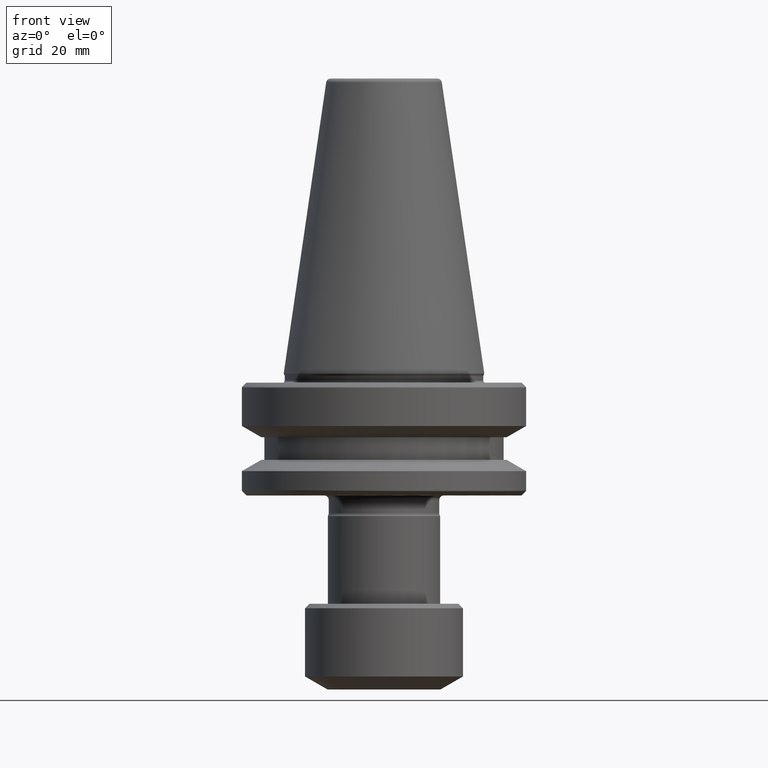
[diagram: clean part render]
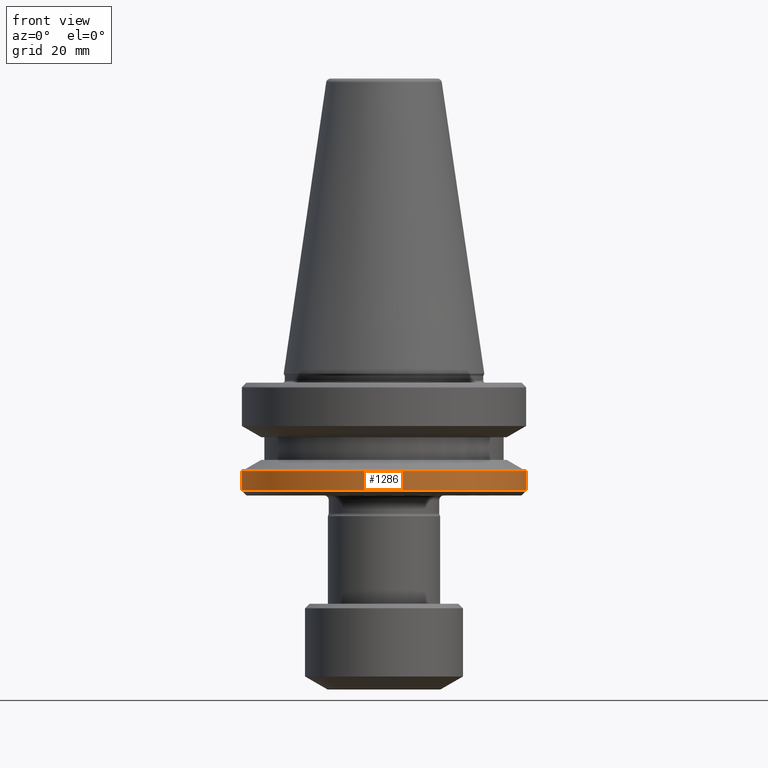
[diagram: same view with one face highlighted and labeled with its STEP entity id]
A machine part, front view. The second image highlights one B-rep face of the part: STEP entity #1286.
In plain terms, the highlighted cylindrical surface (partial cylindrical patch) has radius 31.5 mm, axis along (-0, -0, 1).
Its self-contained STEP definition (entity closure, byte-faithful):
#4 = FACE_OUTER_BOUND ( 'NONE', #468, .T. ) ;
#8 = EDGE_CURVE ( 'NONE', #336, #319, #440, .T. ) ;
#45 = VECTOR ( 'NONE', #499, 1000.000000000000000 ) ;
#46 = ORIENTED_EDGE ( 'NONE', *, *, #8, .F. ) ;
#72 = LINE ( 'NONE', #864, #342 ) ;
#136 = EDGE_CURVE ( 'NONE', #318, #336, #358, .T. ) ;
#165 = DIRECTION ( 'NONE',  ( -0.0000000000000000000, -0.0000000000000000000, 1.000000000000000000 ) ) ;
#233 = CARTESIAN_POINT ( 'NONE',  ( 0.0000000000000000000, 0.0000000000000000000, 69.75694866325665100 ) ) ;
#251 = VERTEX_POINT ( 'NONE', #835 ) ;
#318 = VERTEX_POINT ( 'NONE', #930 ) ;
#319 = VERTEX_POINT ( 'NONE', #1149 ) ;
#336 = VERTEX_POINT ( 'NONE', #1147 ) ;
#342 = VECTOR ( 'NONE', #165, 1000.000000000000000 ) ;
#355 = EDGE_CURVE ( 'NONE', #251, #319, #72, .T. ) ;
#358 = LINE ( 'NONE', #931, #45 ) ;
#440 = CIRCLE ( 'NONE', #967, 31.50000000000000000 ) ;
#447 = CYLINDRICAL_SURFACE ( 'NONE', #1091, 31.50000000000000000 ) ;
#468 = EDGE_LOOP ( 'NONE', ( #1382, #653, #1182, #46 ) ) ;
#499 = DIRECTION ( 'NONE',  ( -0.0000000000000000000, -0.0000000000000000000, 1.000000000000000000 ) ) ;
#653 = ORIENTED_EDGE ( 'NONE', *, *, #676, .T. ) ;
#676 = EDGE_CURVE ( 'NONE', #318, #251, #714, .T. ) ;
#706 = DIRECTION ( 'NONE',  ( -0.0000000000000000000, -0.0000000000000000000, 1.000000000000000000 ) ) ;
#709 = DIRECTION ( 'NONE',  ( 1.000000000000000000, 0.0000000000000000000, 0.0000000000000000000 ) ) ;
#714 = CIRCLE ( 'NONE', #1248, 31.50000000000000000 ) ;
#835 = CARTESIAN_POINT ( 'NONE',  ( 31.50000000000000000, 0.0000000000000000000, -25.83431457505076900 ) ) ;
#836 = DIRECTION ( 'NONE',  ( 1.000000000000000000, 0.0000000000000000000, 0.0000000000000000000 ) ) ;
#864 = CARTESIAN_POINT ( 'NONE',  ( 31.50000000000000000, 0.0000000000000000000, 69.75694866325665100 ) ) ;
#873 = CARTESIAN_POINT ( 'NONE',  ( 0.0000000000000000000, 0.0000000000000000000, -21.60014200631675500 ) ) ;
#930 = CARTESIAN_POINT ( 'NONE',  ( -31.50000000000000000, 3.857637417314162700E-015, -25.83431457505076900 ) ) ;
#931 = CARTESIAN_POINT ( 'NONE',  ( -31.50000000000000000, 3.857637417314162700E-015, 69.75694866325665100 ) ) ;
#967 = AXIS2_PLACEMENT_3D ( 'NONE', #873, #706, #709 ) ;
#1009 = CARTESIAN_POINT ( 'NONE',  ( 0.0000000000000000000, 0.0000000000000000000, -25.83431457505076900 ) ) ;
#1091 = AXIS2_PLACEMENT_3D ( 'NONE', #233, #1314, #1107 ) ;
#1107 = DIRECTION ( 'NONE',  ( 1.000000000000000000, 0.0000000000000000000, 0.0000000000000000000 ) ) ;
#1147 = CARTESIAN_POINT ( 'NONE',  ( -31.50000000000000000, 3.857637417314162700E-015, -21.60014200631675500 ) ) ;
#1149 = CARTESIAN_POINT ( 'NONE',  ( 31.50000000000000000, 0.0000000000000000000, -21.60014200631675500 ) ) ;
#1150 = DIRECTION ( 'NONE',  ( -0.0000000000000000000, -0.0000000000000000000, 1.000000000000000000 ) ) ;
#1182 = ORIENTED_EDGE ( 'NONE', *, *, #355, .T. ) ;
#1248 = AXIS2_PLACEMENT_3D ( 'NONE', #1009, #1150, #836 ) ;
#1286 = ADVANCED_FACE ( 'NONE', ( #4 ), #447, .T. ) ;
#1314 = DIRECTION ( 'NONE',  ( -0.0000000000000000000, -0.0000000000000000000, 1.000000000000000000 ) ) ;
#1382 = ORIENTED_EDGE ( 'NONE', *, *, #136, .F. ) ;